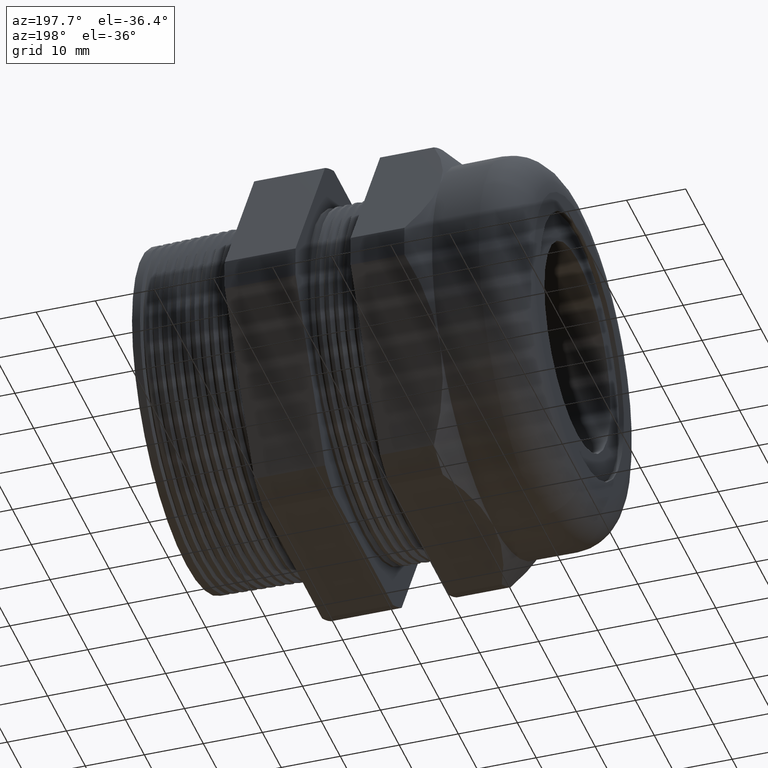
[diagram: clean part render]
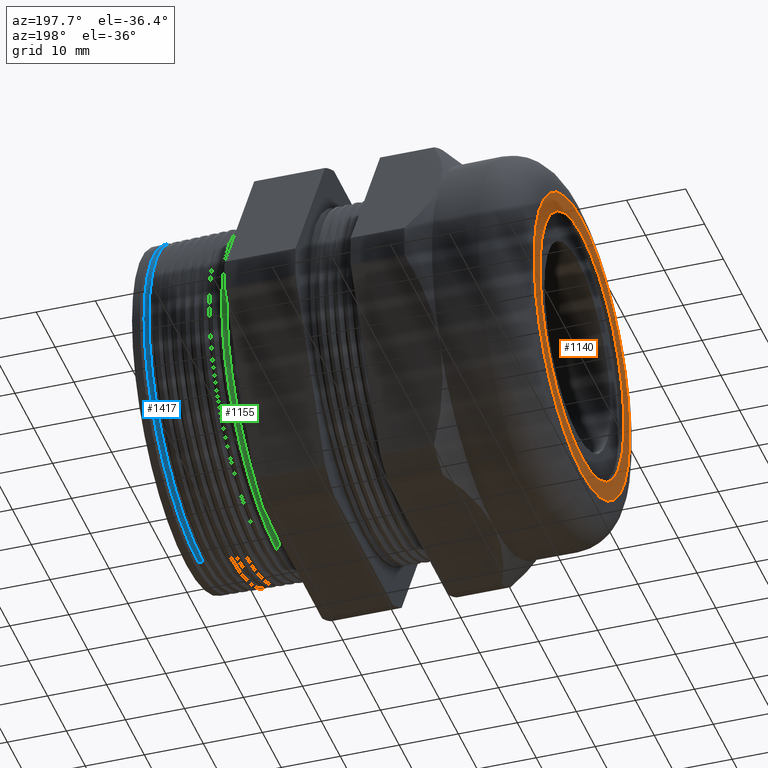
[diagram: same view with three faces highlighted in distinct colors, each labeled with its STEP entity id]
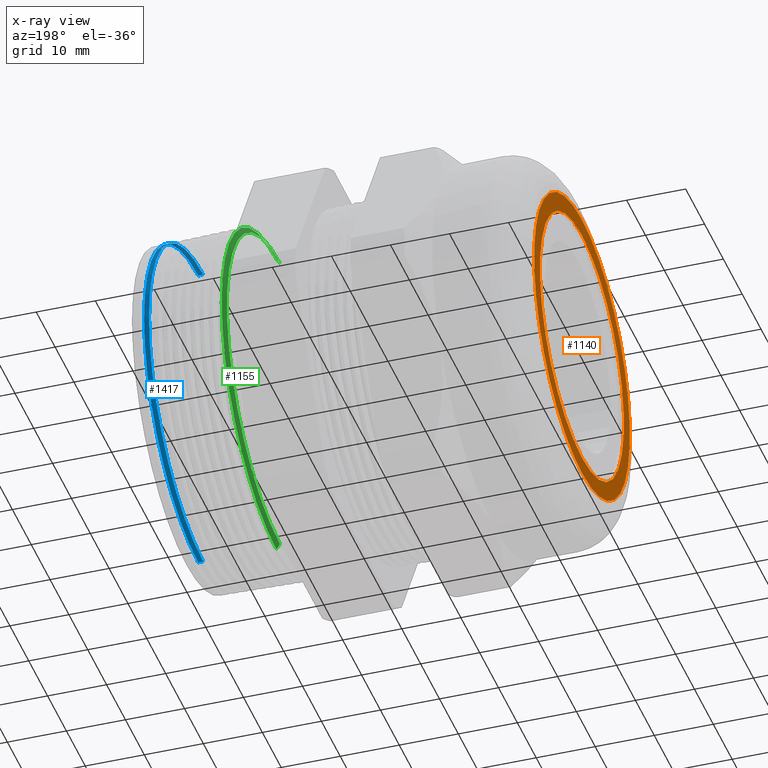
[diagram: x-ray of the same camera — body ghosted, the three highlighted faces saturated]
A machine part, auxiliary view with three faces highlighted in distinct colors.
The next image is the same camera in x-ray (body ghosted, the three faces saturated) — at least one of them is partly hidden behind the body in this view.
Their STEP definitions:

[orange] entity #1140 — the highlighted planar face has unit normal (-1, 0, 0).
#15 = VERTEX_POINT ( 'NONE', #248 ) ;
#47 = EDGE_CURVE ( 'NONE', #15, #4229, #311, .T. ) ;
#248 = CARTESIAN_POINT ( 'NONE',  ( -2.239999999999999800, 0.0000000000000000000, 1.000000000000000000 ) ) ;
#308 = DIRECTION ( 'NONE',  ( 0.0000000000000000000, 0.0000000000000000000, 1.000000000000000000 ) ) ;
#309 = DIRECTION ( 'NONE',  ( -1.000000000000000000, 0.0000000000000000000, 0.0000000000000000000 ) ) ;
#310 = AXIS2_PLACEMENT_3D ( 'NONE', #317, #309, #308 ) ;
#311 = CIRCLE ( 'NONE', #310, 1.000000000000000000 ) ;
#317 = CARTESIAN_POINT ( 'NONE',  ( -2.239999999999999800, 0.0000000000000000000, 0.0000000000000000000 ) ) ;
#1140 = ADVANCED_FACE ( 'NONE', ( #2505, #2500 ), #2566, .T. ) ;
#1143 = EDGE_CURVE ( 'NONE', #1269, #1268, #2553, .T. ) ;
#1156 = EDGE_LOOP ( 'NONE', ( #1511, #1515 ) ) ;
#1267 = EDGE_CURVE ( 'NONE', #1268, #1269, #2738, .T. ) ;
#1268 = VERTEX_POINT ( 'NONE', #2733 ) ;
#1269 = VERTEX_POINT ( 'NONE', #2732 ) ;
#1506 = EDGE_LOOP ( 'NONE', ( #1507, #1514 ) ) ;
#1507 = ORIENTED_EDGE ( 'NONE', *, *, #1143, .T. ) ;
#1511 = ORIENTED_EDGE ( 'NONE', *, *, #47, .T. ) ;
#1514 = ORIENTED_EDGE ( 'NONE', *, *, #1267, .T. ) ;
#1515 = ORIENTED_EDGE ( 'NONE', *, *, #1516, .T. ) ;
#1516 = EDGE_CURVE ( 'NONE', #4229, #15, #3187, .T. ) ;
#2500 = FACE_BOUND ( 'NONE', #1506, .T. ) ;
#2505 = FACE_OUTER_BOUND ( 'NONE', #1156, .T. ) ;
#2550 = DIRECTION ( 'NONE',  ( 0.0000000000000000000, 0.0000000000000000000, -1.000000000000000000 ) ) ;
#2551 = DIRECTION ( 'NONE',  ( 1.000000000000000000, 0.0000000000000000000, 0.0000000000000000000 ) ) ;
#2552 = AXIS2_PLACEMENT_3D ( 'NONE', #2558, #2551, #2550 ) ;
#2553 = CIRCLE ( 'NONE', #2552, 0.8774999999999999500 ) ;
#2558 = CARTESIAN_POINT ( 'NONE',  ( -2.239999999999999800, 0.0000000000000000000, 0.0000000000000000000 ) ) ;
#2562 = DIRECTION ( 'NONE',  ( 0.0000000000000000000, 0.0000000000000000000, 1.000000000000000000 ) ) ;
#2563 = DIRECTION ( 'NONE',  ( -1.000000000000000000, 0.0000000000000000000, 0.0000000000000000000 ) ) ;
#2564 = CARTESIAN_POINT ( 'NONE',  ( -2.239999999999999800, 1.280000000000000000, 0.0000000000000000000 ) ) ;
#2565 = AXIS2_PLACEMENT_3D ( 'NONE', #2564, #2563, #2562 ) ;
#2566 = PLANE ( 'NONE',  #2565 ) ;
#2732 = CARTESIAN_POINT ( 'NONE',  ( -2.239999999999999800, 0.0000000000000000000, -0.8774999999999999500 ) ) ;
#2733 = CARTESIAN_POINT ( 'NONE',  ( -2.239999999999999800, 1.074627566251802300E-016, 0.8774999999999999500 ) ) ;
#2734 = DIRECTION ( 'NONE',  ( 0.0000000000000000000, 0.0000000000000000000, -1.000000000000000000 ) ) ;
#2735 = DIRECTION ( 'NONE',  ( 1.000000000000000000, 0.0000000000000000000, 0.0000000000000000000 ) ) ;
#2736 = CARTESIAN_POINT ( 'NONE',  ( -2.239999999999999800, 0.0000000000000000000, 0.0000000000000000000 ) ) ;
#2737 = AXIS2_PLACEMENT_3D ( 'NONE', #2736, #2735, #2734 ) ;
#2738 = CIRCLE ( 'NONE', #2737, 0.8774999999999999500 ) ;
#3179 = DIRECTION ( 'NONE',  ( 0.0000000000000000000, 0.0000000000000000000, 1.000000000000000000 ) ) ;
#3180 = DIRECTION ( 'NONE',  ( -1.000000000000000000, 0.0000000000000000000, 0.0000000000000000000 ) ) ;
#3181 = CARTESIAN_POINT ( 'NONE',  ( -2.239999999999999800, 0.0000000000000000000, 0.0000000000000000000 ) ) ;
#3182 = AXIS2_PLACEMENT_3D ( 'NONE', #3181, #3180, #3179 ) ;
#3187 = CIRCLE ( 'NONE', #3182, 1.000000000000000000 ) ;
#3800 = CARTESIAN_POINT ( 'NONE',  ( -2.239999999999999800, 1.396097351027982800E-016, -1.000000000000000000 ) ) ;
#4229 = VERTEX_POINT ( 'NONE', #3800 ) ;

[blue] entity #1417 — the highlighted conical surface has half-angle 1.5 deg.
#697 = VERTEX_POINT ( 'NONE', #1735 ) ;
#699 = EDGE_CURVE ( 'NONE', #700, #697, #1734, .T. ) ;
#700 = VERTEX_POINT ( 'NONE', #1795 ) ;
#967 = VERTEX_POINT ( 'NONE', #2194 ) ;
#976 = VERTEX_POINT ( 'NONE', #2238 ) ;
#978 = EDGE_CURVE ( 'NONE', #967, #976, #2237, .T. ) ;
#1394 = ORIENTED_EDGE ( 'NONE', *, *, #978, .F. ) ;
#1395 = ORIENTED_EDGE ( 'NONE', *, *, #1396, .T. ) ;
#1396 = EDGE_CURVE ( 'NONE', #967, #697, #3009, .T. ) ;
#1397 = ORIENTED_EDGE ( 'NONE', *, *, #699, .F. ) ;
#1398 = ORIENTED_EDGE ( 'NONE', *, *, #1399, .F. ) ;
#1399 = EDGE_CURVE ( 'NONE', #976, #700, #3005, .T. ) ;
#1417 = ADVANCED_FACE ( 'NONE', ( #3030 ), #3028, .T. ) ;
#1418 = EDGE_LOOP ( 'NONE', ( #1394, #1395, #1397, #1398 ) ) ;
#1730 = DIRECTION ( 'NONE',  ( 0.0000000000000000000, 0.0000000000000000000, -1.000000000000000000 ) ) ;
#1731 = DIRECTION ( 'NONE',  ( -1.000000000000000000, 0.0000000000000000000, 0.0000000000000000000 ) ) ;
#1732 = CARTESIAN_POINT ( 'NONE',  ( 0.2853595204696677300, 0.0000000000000000000, 0.0000000000000000000 ) ) ;
#1733 = AXIS2_PLACEMENT_3D ( 'NONE', #1732, #1731, #1730 ) ;
#1734 = CIRCLE ( 'NONE', #1733, 1.132428190430268900 ) ;
#1735 = CARTESIAN_POINT ( 'NONE',  ( 0.2853595204696677300, 1.386824558674657900E-016, -1.132428190430268900 ) ) ;
#1795 = CARTESIAN_POINT ( 'NONE',  ( 0.2853595204696677300, 0.0000000000000000000, 1.132428190430268900 ) ) ;
#2194 = CARTESIAN_POINT ( 'NONE',  ( 0.3189421710857147700, 1.386286085974517100E-016, -1.131548797775152200 ) ) ;
#2232 = DIRECTION ( 'NONE',  ( 0.0000000000000000000, 0.0000000000000000000, 1.000000000000000000 ) ) ;
#2233 = DIRECTION ( 'NONE',  ( 1.000000000000000000, 0.0000000000000000000, 0.0000000000000000000 ) ) ;
#2234 = CARTESIAN_POINT ( 'NONE',  ( 0.3189421710857147700, 0.0000000000000000000, 0.0000000000000000000 ) ) ;
#2235 = AXIS2_PLACEMENT_3D ( 'NONE', #2234, #2233, #2232 ) ;
#2237 = CIRCLE ( 'NONE', #2235, 1.131548797775151900 ) ;
#2238 = CARTESIAN_POINT ( 'NONE',  ( 0.3189421710857147700, 0.0000000000000000000, 1.131548797775151900 ) ) ;
#3001 = DIRECTION ( 'NONE',  ( -0.9996573249755573700, 0.0000000000000000000, 0.02617694830786633500 ) ) ;
#3002 = VECTOR ( 'NONE', #3001, 39.37007874015748100 ) ;
#3004 = CARTESIAN_POINT ( 'NONE',  ( 0.3999999999999999700, 0.0000000000000000000, 1.129426223824634400 ) ) ;
#3005 = LINE ( 'NONE', #3004, #3002 ) ;
#3006 = DIRECTION ( 'NONE',  ( -0.9996573249755573700, 3.205751595667422300E-018, -0.02617694830786633500 ) ) ;
#3007 = VECTOR ( 'NONE', #3006, 39.37007874015748100 ) ;
#3008 = CARTESIAN_POINT ( 'NONE',  ( 0.3999999999999999700, 1.383148209879920500E-016, -1.129426223824634400 ) ) ;
#3009 = LINE ( 'NONE', #3008, #3007 ) ;
#3024 = DIRECTION ( 'NONE',  ( 0.0000000000000000000, 0.0000000000000000000, 1.000000000000000000 ) ) ;
#3025 = DIRECTION ( 'NONE',  ( -1.000000000000000000, 0.0000000000000000000, 0.0000000000000000000 ) ) ;
#3026 = CARTESIAN_POINT ( 'NONE',  ( 0.3999999999999999700, 0.0000000000000000000, 0.0000000000000000000 ) ) ;
#3027 = AXIS2_PLACEMENT_3D ( 'NONE', #3026, #3025, #3024 ) ;
#3028 = CONICAL_SURFACE ( 'NONE', #3027, 1.129426223824634400, 0.02617993877990812100 ) ;
#3030 = FACE_OUTER_BOUND ( 'NONE', #1418, .T. ) ;

[green] entity #1155 — the highlighted conical surface has half-angle 58.5 deg.
#201 = VERTEX_POINT ( 'NONE', #589 ) ;
#202 = VERTEX_POINT ( 'NONE', #588 ) ;
#203 = ORIENTED_EDGE ( 'NONE', *, *, #204, .T. ) ;
#204 = EDGE_CURVE ( 'NONE', #202, #201, #656, .T. ) ;
#205 = VERTEX_POINT ( 'NONE', #650 ) ;
#206 = ORIENTED_EDGE ( 'NONE', *, *, #207, .T. ) ;
#207 = EDGE_CURVE ( 'NONE', #205, #1250, #649, .T. ) ;
#208 = EDGE_CURVE ( 'NONE', #201, #205, #642, .T. ) ;
#209 = ORIENTED_EDGE ( 'NONE', *, *, #208, .T. ) ;
#588 = CARTESIAN_POINT ( 'NONE',  ( -0.2259609809054345900, 1.380053675519157400E-016, -1.107427404413645600 ) ) ;
#589 = CARTESIAN_POINT ( 'NONE',  ( -0.2259609809054345900, 0.0000000000000000000, 1.107427404413645600 ) ) ;
#639 = DIRECTION ( 'NONE',  ( 0.5224985647159479100, 1.044183048100713000E-016, 0.8526401643540927300 ) ) ;
#640 = VECTOR ( 'NONE', #639, 39.37007874015748900 ) ;
#641 = CARTESIAN_POINT ( 'NONE',  ( -0.2259609809054345900, 1.356207426103232500E-016, 1.107427404413645600 ) ) ;
#642 = LINE ( 'NONE', #641, #640 ) ;
#645 = DIRECTION ( 'NONE',  ( 0.0000000000000000000, 0.0000000000000000000, -1.000000000000000000 ) ) ;
#646 = DIRECTION ( 'NONE',  ( -1.000000000000000000, 0.0000000000000000000, 0.0000000000000000000 ) ) ;
#647 = CARTESIAN_POINT ( 'NONE',  ( -0.2028069919000273800, 0.0000000000000000000, 0.0000000000000000000 ) ) ;
#648 = AXIS2_PLACEMENT_3D ( 'NONE', #647, #646, #645 ) ;
#649 = CIRCLE ( 'NONE', #648, 1.145211280435881800 ) ;
#650 = CARTESIAN_POINT ( 'NONE',  ( -0.2028069919000273800, 0.0000000000000000000, 1.145211280435881800 ) ) ;
#651 = DIRECTION ( 'NONE',  ( 0.0000000000000000000, 0.0000000000000000000, -1.000000000000000000 ) ) ;
#652 = DIRECTION ( 'NONE',  ( 1.000000000000000000, 0.0000000000000000000, 0.0000000000000000000 ) ) ;
#653 = CARTESIAN_POINT ( 'NONE',  ( -0.2259609809054345900, 0.0000000000000000000, 0.0000000000000000000 ) ) ;
#655 = AXIS2_PLACEMENT_3D ( 'NONE', #653, #652, #651 ) ;
#656 = CIRCLE ( 'NONE', #655, 1.107427404413645600 ) ;
#1155 = ADVANCED_FACE ( 'NONE', ( #2540 ), #2537, .T. ) ;
#1157 = EDGE_LOOP ( 'NONE', ( #203, #209, #206, #1249 ) ) ;
#1249 = ORIENTED_EDGE ( 'NONE', *, *, #1251, .F. ) ;
#1250 = VERTEX_POINT ( 'NONE', #2701 ) ;
#1251 = EDGE_CURVE ( 'NONE', #202, #1250, #2700, .T. ) ;
#2533 = DIRECTION ( 'NONE',  ( 0.0000000000000000000, 0.0000000000000000000, -1.000000000000000000 ) ) ;
#2534 = DIRECTION ( 'NONE',  ( 1.000000000000000000, 0.0000000000000000000, 0.0000000000000000000 ) ) ;
#2535 = CARTESIAN_POINT ( 'NONE',  ( -0.2259609809054345900, 0.0000000000000000000, 0.0000000000000000000 ) ) ;
#2536 = AXIS2_PLACEMENT_3D ( 'NONE', #2535, #2534, #2533 ) ;
#2537 = CONICAL_SURFACE ( 'NONE', #2536, 1.107427404413645600, 1.021017612416683900 ) ;
#2540 = FACE_OUTER_BOUND ( 'NONE', #1157, .T. ) ;
#2697 = DIRECTION ( 'NONE',  ( 0.5224985647159479100, 0.0000000000000000000, -0.8526401643540927300 ) ) ;
#2698 = VECTOR ( 'NONE', #2697, 39.37007874015748900 ) ;
#2699 = CARTESIAN_POINT ( 'NONE',  ( -0.2259609809054345900, 0.0000000000000000000, -1.107427404413645600 ) ) ;
#2700 = LINE ( 'NONE', #2699, #2698 ) ;
#2701 = CARTESIAN_POINT ( 'NONE',  ( -0.2028069919000273800, 1.402479328933244300E-016, -1.145211280435881800 ) ) ;